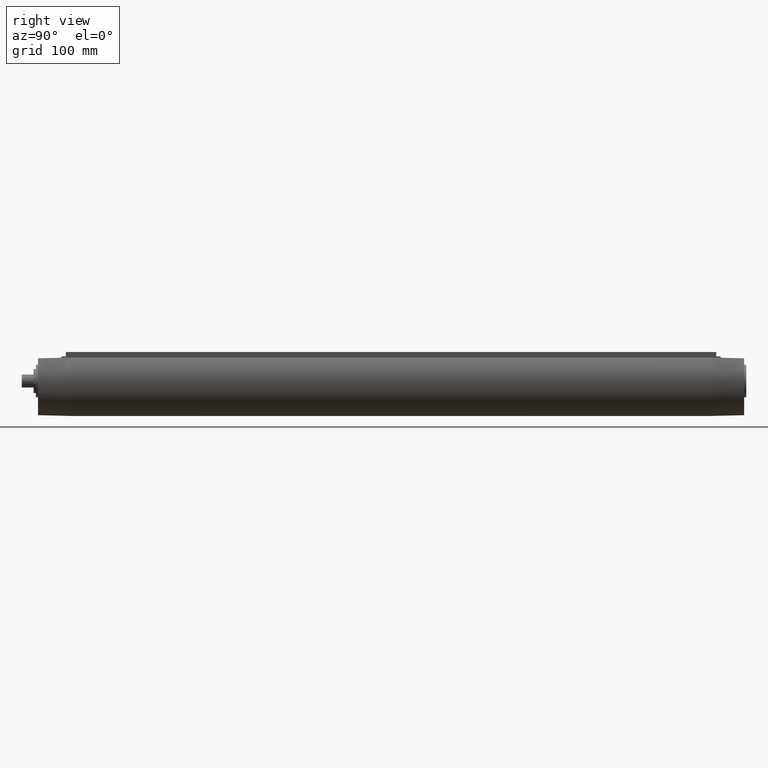
[diagram: clean part render]
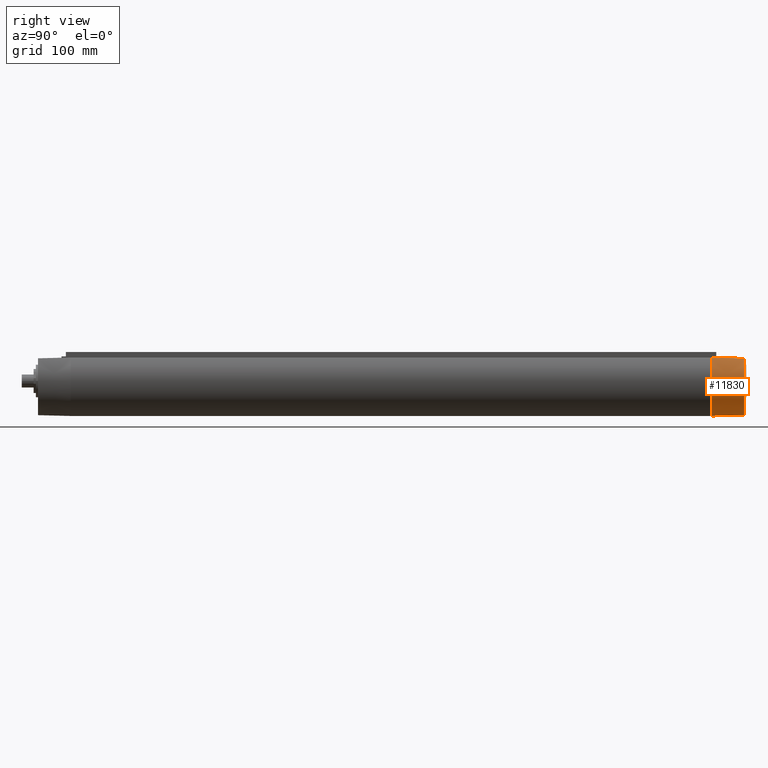
[diagram: same view with one face highlighted and labeled with its STEP entity id]
A machine part, right view. The second image highlights one B-rep face of the part: STEP entity #11830.
In plain terms, the highlighted conical surface has half-angle 1.4 deg.
Its self-contained STEP definition (entity closure, byte-faithful):
#9300=CARTESIAN_POINT('',(-27.2571830238552,20.7668157924421,648.));
#9310=VERTEX_POINT('',#9300);
#9340=CARTESIAN_POINT('',(-27.6179289592962,21.4999999999953,618.));
#9350=CARTESIAN_POINT('',(-27.498465546881,21.2556050342684,
628.000009405866));
#9360=CARTESIAN_POINT('',(-27.3782272919301,21.0112102938423,
638.000009593185));
#9370=CARTESIAN_POINT('',(-27.2571830238552,20.7668157924421,
648.000000000002));
#9380=B_SPLINE_CURVE_WITH_KNOTS('',3,(#9340,#9350,#9360,#9370),
.UNSPECIFIED.,.F.,.F.,(4,4),(0.,30.0111262777981),.UNSPECIFIED.);
#9390=CARTESIAN_POINT('',(-27.617928959283,21.4999999999999,618.));
#9400=VERTEX_POINT('',#9390);
#9410=EDGE_CURVE('',#9400,#9310,#9380,.T.);
#9650=CARTESIAN_POINT('',(7.13436619494334E-13,-2.80569113088979E-13,
648.000000000002));
#9660=DIRECTION('',(-4.57008643783364E-14,1.82575551629924E-14,1.));
#9670=DIRECTION('',(-1.,0.,-4.57008643783364E-14));
#9680=AXIS2_PLACEMENT_3D('',#9650,#9660,#9670);
#9690=CIRCLE('',#9680,34.2668157924427);
#9700=CARTESIAN_POINT('',(-14.0214441037524,-31.2668157924422,648.));
#9710=VERTEX_POINT('',#9700);
#9720=EDGE_CURVE('',#9310,#9710,#9690,.T.);
#11390=CARTESIAN_POINT('',(-14.177446878767,-32.0000000000271,
617.999999998878));
#11400=CARTESIAN_POINT('',(-14.1257320444551,-31.7556052279284,
628.000001481972));
#11410=CARTESIAN_POINT('',(-14.0737343023683,-31.5112104914606,
638.000001507159));
#11420=CARTESIAN_POINT('',(-14.0214441037529,-31.2668157924422,648.));
#11430=B_SPLINE_CURVE_WITH_KNOTS('',3,(#11390,#11400,#11410,#11420),
.UNSPECIFIED.,.F.,.F.,(4,4),(0.,30.0093634806212),.UNSPECIFIED.);
#11440=CARTESIAN_POINT('',(-14.1774468787636,-32.0000000000274,
617.999999998878));
#11450=VERTEX_POINT('',#11440);
#11460=EDGE_CURVE('',#11450,#9710,#11430,.T.);
#11660=CARTESIAN_POINT('',(2.10730616196602E-12,-8.37421820534822E-13,
617.500149254675));
#11670=DIRECTION('',(4.57008643783364E-14,-1.82575551629924E-14,-1.));
#11680=DIRECTION('',(-1.,0.,-4.57008643783364E-14));
#11690=AXIS2_PLACEMENT_3D('',#11660,#11670,#11680);
#11700=CONICAL_SURFACE('',#11690,35.0122160890888,0.0244346095279621);
#11710=ORIENTED_EDGE('',*,*,#9410,.F.);
#11720=ORIENTED_EDGE('',*,*,#9720,.F.);
#11730=ORIENTED_EDGE('',*,*,#11460,.T.);
#11740=CARTESIAN_POINT('',(1.05644213013765E-12,-4.18144686878121E-13,
617.999999999991));
#11750=DIRECTION('',(-2.28504321891682E-14,9.12877758149621E-15,1.));
#11760=DIRECTION('',(-1.,2.27547761313911E-28,-2.28504321891682E-14));
#11770=AXIS2_PLACEMENT_3D('',#11740,#11750,#11760);
#11780=CIRCLE('',#11770,35.000000000001);
#11790=EDGE_CURVE('',#9400,#11450,#11780,.T.);
#11800=ORIENTED_EDGE('',*,*,#11790,.T.);
#11810=EDGE_LOOP('',(#11800,#11730,#11720,#11710));
#11820=FACE_OUTER_BOUND('',#11810,.T.);
#11830=ADVANCED_FACE('',(#11820),#11700,.T.);